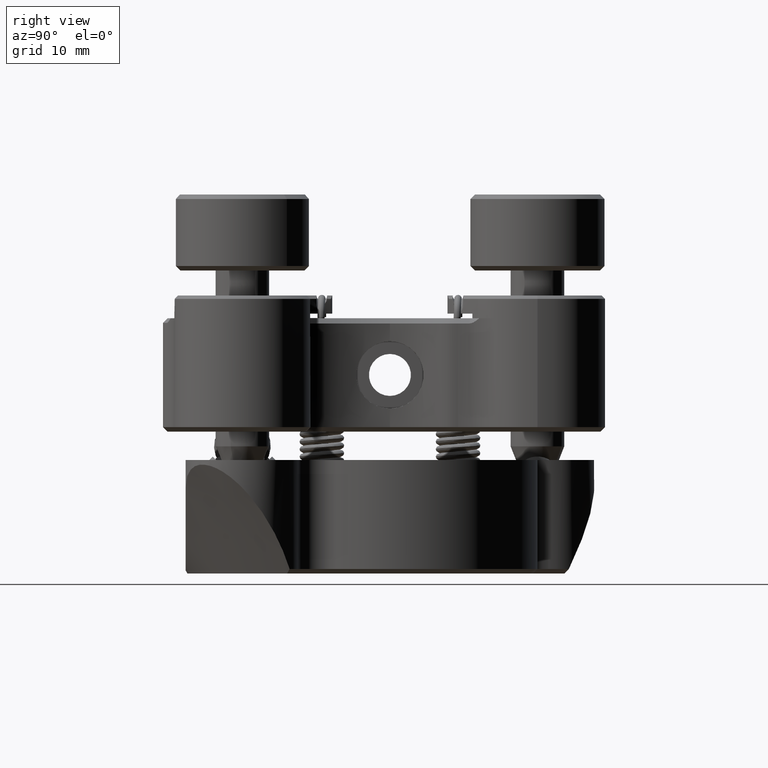
[diagram: clean part render]
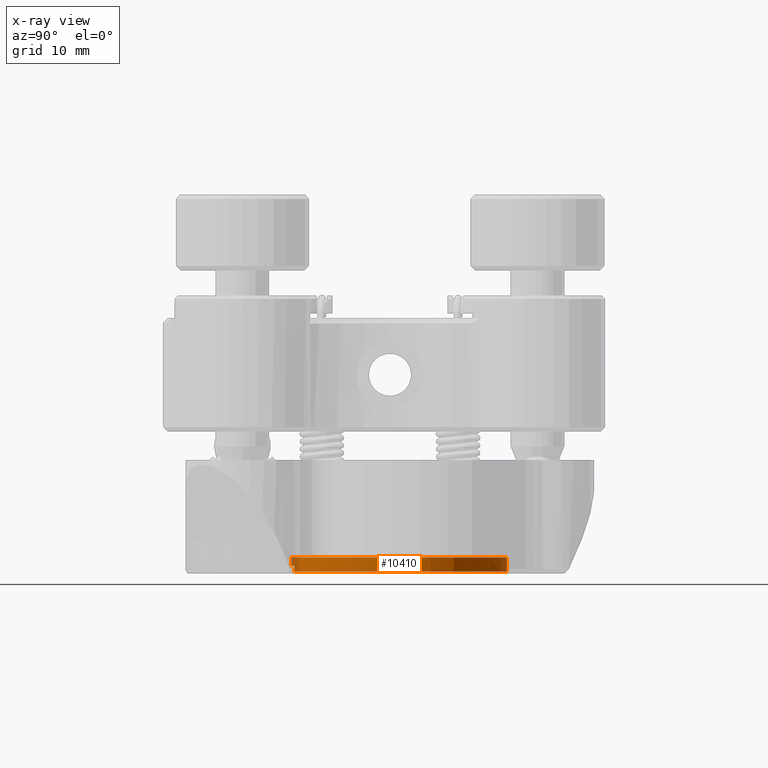
[diagram: x-ray — body ghosted, one internal face saturated and labeled with its STEP entity id]
A machine part, right view, then the same camera in x-ray: the body is ghosted and one INTERNAL B-rep face — a face not visible from any outside direction — is saturated and labeled: STEP entity #10410.
In plain terms, the highlighted cylindrical surface (partial cylindrical patch) has radius 13.145 mm, axis along (-0, 0, -1).
Its self-contained STEP definition (entity closure, byte-faithful):
#215 = CYLINDRICAL_SURFACE ( 'NONE', #6681, 13.14499999999999957 ) ;
#484 = EDGE_CURVE ( 'NONE', #13838, #14514, #15755, .T. ) ;
#746 = ORIENTED_EDGE ( 'NONE', *, *, #7341, .T. ) ;
#1984 = CARTESIAN_POINT ( 'NONE',  ( 13.13129944064942833, 0.5999999999999998668, -0.8000000000000001554 ) ) ;
#2519 = LINE ( 'NONE', #17208, #4247 ) ;
#2555 = LINE ( 'NONE', #3164, #16444 ) ;
#2648 = VERTEX_POINT ( 'NONE', #16978 ) ;
#2754 = EDGE_LOOP ( 'NONE', ( #746, #21211, #18873, #7683, #16108, #6966, #12732, #18867 ) ) ;
#3164 = CARTESIAN_POINT ( 'NONE',  ( -13.13129944064942833, 0.5999999999999998668, -0.1000000000000000472 ) ) ;
#4247 = VECTOR ( 'NONE', #16713, 1000.000000000000000 ) ;
#4421 = CARTESIAN_POINT ( 'NONE',  ( 13.14499999999999957, 1.609798217479195936E-15, 1.000000000000000000 ) ) ;
#4575 = EDGE_CURVE ( 'NONE', #2648, #15134, #2555, .T. ) ;
#4798 = DIRECTION ( 'NONE',  ( -0.000000000000000000, -0.000000000000000000, -1.000000000000000000 ) ) ;
#4909 = CARTESIAN_POINT ( 'NONE',  ( -13.14499999999999957, 0.000000000000000000, -0.1000000000000000472 ) ) ;
#5060 = CARTESIAN_POINT ( 'NONE',  ( 13.14499999999999957, 1.609798217479195936E-15, 0.7999999999999890532 ) ) ;
#5364 = CARTESIAN_POINT ( 'NONE',  ( 0.000000000000000000, 0.000000000000000000, -0.1000000000000000472 ) ) ;
#5365 = VERTEX_POINT ( 'NONE', #1984 ) ;
#5492 = EDGE_CURVE ( 'NONE', #5711, #10799, #2519, .T. ) ;
#5648 = CARTESIAN_POINT ( 'NONE',  ( 0.000000000000000000, 0.000000000000000000, -0.8000000000000012657 ) ) ;
#5711 = VERTEX_POINT ( 'NONE', #20721 ) ;
#5832 = CARTESIAN_POINT ( 'NONE',  ( -13.13129944064942833, 0.5999999999999998668, -0.8000000000000012657 ) ) ;
#6169 = DIRECTION ( 'NONE',  ( -1.000000000000000000, 0.000000000000000000, 0.000000000000000000 ) ) ;
#6231 = VERTEX_POINT ( 'NONE', #9876 ) ;
#6347 = DIRECTION ( 'NONE',  ( 0.000000000000000000, 0.000000000000000000, -1.000000000000000000 ) ) ;
#6630 = CIRCLE ( 'NONE', #13803, 13.14499999999999957 ) ;
#6681 = AXIS2_PLACEMENT_3D ( 'NONE', #6790, #14813, #8278 ) ;
#6790 = CARTESIAN_POINT ( 'NONE',  ( 0.000000000000000000, 0.000000000000000000, 1.000000000000000000 ) ) ;
#6966 = ORIENTED_EDGE ( 'NONE', *, *, #4575, .F. ) ;
#7341 = EDGE_CURVE ( 'NONE', #5711, #13838, #6630, .T. ) ;
#7661 = AXIS2_PLACEMENT_3D ( 'NONE', #5364, #13914, #13497 ) ;
#7683 = ORIENTED_EDGE ( 'NONE', *, *, #18065, .T. ) ;
#8238 = EDGE_CURVE ( 'NONE', #10799, #2648, #13493, .T. ) ;
#8278 = DIRECTION ( 'NONE',  ( -1.000000000000000000, 0.000000000000000000, 0.000000000000000000 ) ) ;
#9195 = AXIS2_PLACEMENT_3D ( 'NONE', #11002, #14309, #6169 ) ;
#9584 = EDGE_CURVE ( 'NONE', #5365, #15134, #12457, .T. ) ;
#9876 = CARTESIAN_POINT ( 'NONE',  ( 13.13129944064942833, 0.5999999999999998668, -0.1000000000000000472 ) ) ;
#10410 = ADVANCED_FACE ( 'NONE', ( #15029 ), #215, .T. ) ;
#10799 = VERTEX_POINT ( 'NONE', #4909 ) ;
#10953 = DIRECTION ( 'NONE',  ( -0.000000000000000000, -0.000000000000000000, -1.000000000000000000 ) ) ;
#11002 = CARTESIAN_POINT ( 'NONE',  ( 0.000000000000000000, 0.000000000000000000, -0.1000000000000000472 ) ) ;
#11693 = LINE ( 'NONE', #18231, #15665 ) ;
#11997 = DIRECTION ( 'NONE',  ( -0.000000000000000000, -0.000000000000000000, -1.000000000000000000 ) ) ;
#12171 = DIRECTION ( 'NONE',  ( -0.000000000000000000, -0.000000000000000000, 1.000000000000000000 ) ) ;
#12457 = CIRCLE ( 'NONE', #12816, 13.14499999999999957 ) ;
#12732 = ORIENTED_EDGE ( 'NONE', *, *, #8238, .F. ) ;
#12746 = VECTOR ( 'NONE', #10953, 1000.000000000000000 ) ;
#12816 = AXIS2_PLACEMENT_3D ( 'NONE', #5648, #12171, #20415 ) ;
#13493 = CIRCLE ( 'NONE', #7661, 13.14499999999999957 ) ;
#13497 = DIRECTION ( 'NONE',  ( -1.000000000000000000, 0.000000000000000000, 0.000000000000000000 ) ) ;
#13649 = CIRCLE ( 'NONE', #9195, 13.14499999999999957 ) ;
#13803 = AXIS2_PLACEMENT_3D ( 'NONE', #19418, #6347, #15981 ) ;
#13838 = VERTEX_POINT ( 'NONE', #5060 ) ;
#13914 = DIRECTION ( 'NONE',  ( 0.000000000000000000, 0.000000000000000000, -1.000000000000000000 ) ) ;
#14309 = DIRECTION ( 'NONE',  ( 0.000000000000000000, 0.000000000000000000, -1.000000000000000000 ) ) ;
#14514 = VERTEX_POINT ( 'NONE', #18390 ) ;
#14813 = DIRECTION ( 'NONE',  ( -0.000000000000000000, -0.000000000000000000, -1.000000000000000000 ) ) ;
#15029 = FACE_OUTER_BOUND ( 'NONE', #2754, .T. ) ;
#15134 = VERTEX_POINT ( 'NONE', #5832 ) ;
#15665 = VECTOR ( 'NONE', #11997, 1000.000000000000000 ) ;
#15755 = LINE ( 'NONE', #4421, #12746 ) ;
#15981 = DIRECTION ( 'NONE',  ( 1.000000000000000000, 0.000000000000000000, 0.000000000000000000 ) ) ;
#16108 = ORIENTED_EDGE ( 'NONE', *, *, #9584, .T. ) ;
#16444 = VECTOR ( 'NONE', #4798, 1000.000000000000000 ) ;
#16713 = DIRECTION ( 'NONE',  ( -0.000000000000000000, -0.000000000000000000, -1.000000000000000000 ) ) ;
#16978 = CARTESIAN_POINT ( 'NONE',  ( -13.13129944064942833, 0.5999999999999998668, -0.1000000000000000472 ) ) ;
#17208 = CARTESIAN_POINT ( 'NONE',  ( -13.14499999999999957, 0.000000000000000000, 1.000000000000000000 ) ) ;
#18065 = EDGE_CURVE ( 'NONE', #6231, #5365, #11693, .T. ) ;
#18231 = CARTESIAN_POINT ( 'NONE',  ( 13.13129944064942833, 0.5999999999999998668, -0.1000000000000000472 ) ) ;
#18390 = CARTESIAN_POINT ( 'NONE',  ( 13.14499999999999957, 1.609798217479195936E-15, -0.1000000000000000472 ) ) ;
#18867 = ORIENTED_EDGE ( 'NONE', *, *, #5492, .F. ) ;
#18873 = ORIENTED_EDGE ( 'NONE', *, *, #18940, .F. ) ;
#18940 = EDGE_CURVE ( 'NONE', #6231, #14514, #13649, .T. ) ;
#19418 = CARTESIAN_POINT ( 'NONE',  ( 0.000000000000000000, 0.000000000000000000, 0.7999999999999890532 ) ) ;
#20415 = DIRECTION ( 'NONE',  ( 1.000000000000000000, 0.000000000000000000, 0.000000000000000000 ) ) ;
#20721 = CARTESIAN_POINT ( 'NONE',  ( -13.14499999999999957, 0.000000000000000000, 0.7999999999999890532 ) ) ;
#21211 = ORIENTED_EDGE ( 'NONE', *, *, #484, .T. ) ;